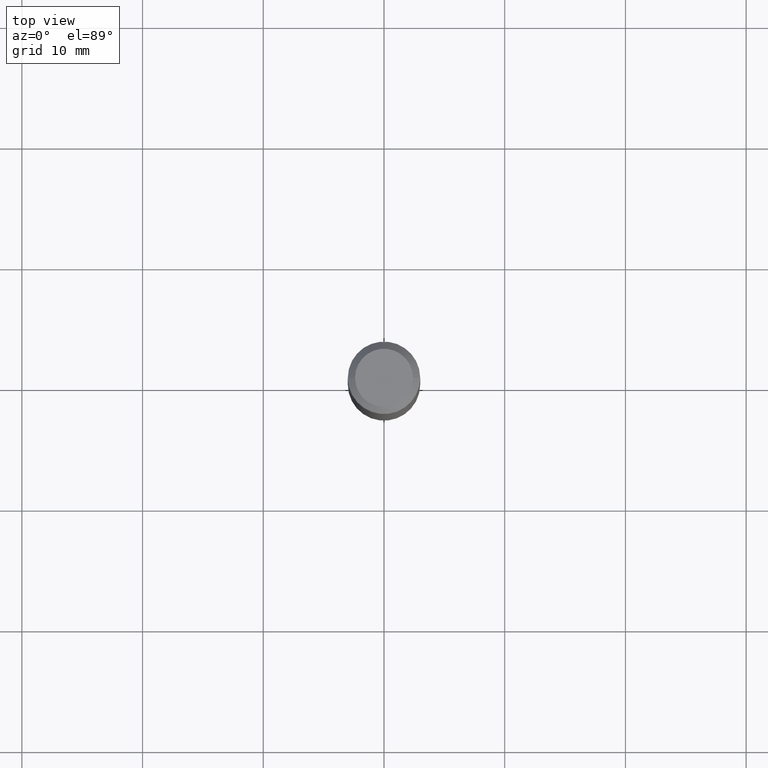
[diagram: clean part render]
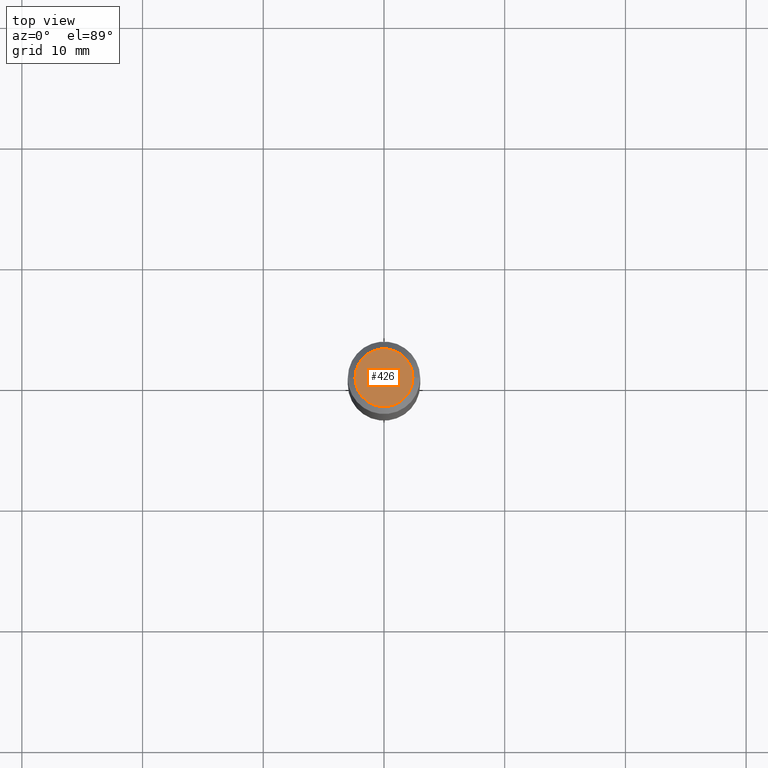
[diagram: same view with one face highlighted and labeled with its STEP entity id]
A machine part, top view. The second image highlights one B-rep face of the part: STEP entity #426.
In plain terms, the highlighted planar face has unit normal (0, -0, -1).
Its self-contained STEP definition (entity closure, byte-faithful):
#9 = DIRECTION ( 'NONE',  ( 1.000000000000000000, -6.982962677686267499E-15, 4.875432709231658792E-29 ) ) ;
#48 = VERTEX_POINT ( 'NONE', #231 ) ;
#54 = EDGE_LOOP ( 'NONE', ( #312, #461 ) ) ;
#64 = DIRECTION ( 'NONE',  ( -2.445468806185136597E-29, 3.491481338843145583E-15, 1.000000000000000000 ) ) ;
#124 = CIRCLE ( 'NONE', #443, 0.09447999999999998066 ) ;
#150 = CIRCLE ( 'NONE', #164, 0.09447999999999998066 ) ;
#164 = AXIS2_PLACEMENT_3D ( 'NONE', #496, #64, #427 ) ;
#180 = VERTEX_POINT ( 'NONE', #401 ) ;
#184 = PLANE ( 'NONE',  #243 ) ;
#231 = CARTESIAN_POINT ( 'NONE',  ( -0.09447999999999998066, 7.009847083995354710E-16, -3.085620075132147757E-17 ) ) ;
#243 = AXIS2_PLACEMENT_3D ( 'NONE', #422, #462, #265 ) ;
#258 = FACE_OUTER_BOUND ( 'NONE', #54, .T. ) ;
#259 = DIRECTION ( 'NONE',  ( -2.445468806185136597E-29, 3.491481338843145583E-15, 1.000000000000000000 ) ) ;
#265 = DIRECTION ( 'NONE',  ( -1.000000000000000000, 6.982962677686265922E-15, -4.876176775795935793E-29 ) ) ;
#312 = ORIENTED_EDGE ( 'NONE', *, *, #430, .T. ) ;
#343 = CARTESIAN_POINT ( 'NONE',  ( 7.545787641473140628E-46, -1.077338491108201769E-31, -3.085620075131671975E-17 ) ) ;
#401 = CARTESIAN_POINT ( 'NONE',  ( 0.09447999999999998066, -7.704367267948738690E-16, -3.085620075131172158E-17 ) ) ;
#422 = CARTESIAN_POINT ( 'NONE',  ( 3.772893820736570314E-46, -5.386692455541008845E-32, -1.542810037565835988E-17 ) ) ;
#426 = ADVANCED_FACE ( 'NONE', ( #258 ), #184, .F. ) ;
#427 = DIRECTION ( 'NONE',  ( 1.000000000000000000, -6.982962677686267499E-15, 4.875432709231658792E-29 ) ) ;
#430 = EDGE_CURVE ( 'NONE', #48, #180, #150, .T. ) ;
#443 = AXIS2_PLACEMENT_3D ( 'NONE', #343, #259, #9 ) ;
#461 = ORIENTED_EDGE ( 'NONE', *, *, #468, .T. ) ;
#462 = DIRECTION ( 'NONE',  ( 2.438088387897960049E-29, -3.491481338843145188E-15, -1.000000000000000000 ) ) ;
#468 = EDGE_CURVE ( 'NONE', #180, #48, #124, .T. ) ;
#496 = CARTESIAN_POINT ( 'NONE',  ( 7.545787641473140628E-46, -1.077338491108201769E-31, -3.085620075131671975E-17 ) ) ;